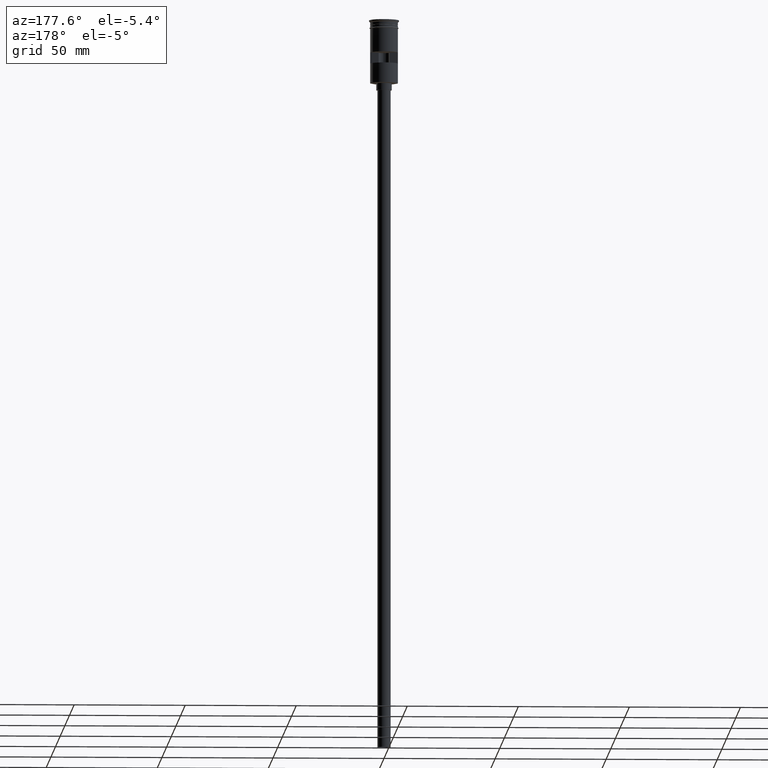
[diagram: clean part render]
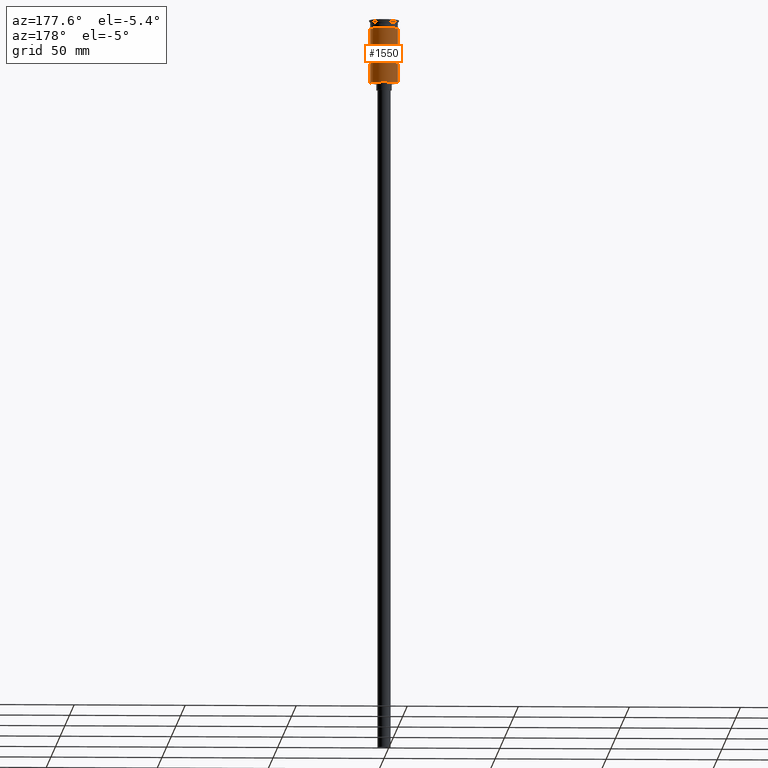
[diagram: same view with one face highlighted and labeled with its STEP entity id]
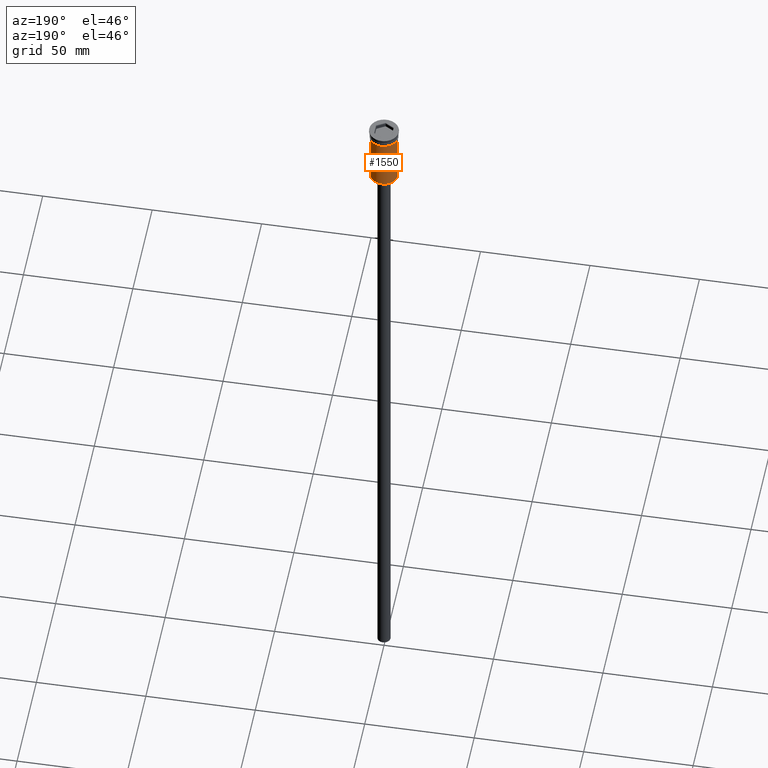
[diagram: same view with one face highlighted and labeled with its STEP entity id]
A machine part, auxiliary view. The second image highlights one B-rep face of the part: STEP entity #1550.
A second angle (auxiliary view) of the same face is appended — the face is thin or edge-on in the first view.
In plain terms, the highlighted cylindrical surface (edge-blend (fillet) strip) has radius 6.25 mm, axis along (-0, -0, 1).
Its self-contained STEP definition (entity closure, byte-faithful):
#15 = DIRECTION ( 'NONE',  ( 1.000000000000000000, 0.000000000000000000, 0.000000000000000000 ) ) ;
#32 = EDGE_CURVE ( 'NONE', #1033, #780, #544, .T. ) ;
#75 = EDGE_CURVE ( 'NONE', #780, #1279, #785, .T. ) ;
#107 = CARTESIAN_POINT ( 'NONE',  ( -6.221133337262590324, 0.5999999999999999778, -14.49999999999999822 ) ) ;
#154 = VECTOR ( 'NONE', #837, 1000.000000000000000 ) ;
#160 = CARTESIAN_POINT ( 'NONE',  ( 0.000000000000000000, 0.000000000000000000, -28.29999999999999716 ) ) ;
#171 = CARTESIAN_POINT ( 'NONE',  ( 6.221133337262590324, 0.5999999999999999778, -19.50000000000000355 ) ) ;
#175 = ORIENTED_EDGE ( 'NONE', *, *, #1211, .F. ) ;
#189 = CARTESIAN_POINT ( 'NONE',  ( -6.249999999999997335, 7.654042494670954648E-16, 0.000000000000000000 ) ) ;
#207 = VERTEX_POINT ( 'NONE', #993 ) ;
#211 = CARTESIAN_POINT ( 'NONE',  ( 6.249999999999997335, 0.000000000000000000, 0.000000000000000000 ) ) ;
#229 = DIRECTION ( 'NONE',  ( 0.000000000000000000, -1.000000000000000000, 2.775557561562892337E-16 ) ) ;
#238 = CARTESIAN_POINT ( 'NONE',  ( -6.250000000000000000, 7.654042494670958593E-16, -3.799999999999998490 ) ) ;
#257 = CIRCLE ( 'NONE', #862, 6.249999999999997335 ) ;
#262 = EDGE_LOOP ( 'NONE', ( #1479, #741, #643, #1321 ) ) ;
#297 = CARTESIAN_POINT ( 'NONE',  ( 6.221133337262590324, 0.5999999999999999778, 0.000000000000000000 ) ) ;
#305 = DIRECTION ( 'NONE',  ( 0.000000000000000000, 0.000000000000000000, -1.000000000000000000 ) ) ;
#310 = VERTEX_POINT ( 'NONE', #770 ) ;
#323 = LINE ( 'NONE', #496, #154 ) ;
#353 = EDGE_CURVE ( 'NONE', #207, #753, #1412, .T. ) ;
#362 = DIRECTION ( 'NONE',  ( -0.000000000000000000, -0.000000000000000000, 1.000000000000000000 ) ) ;
#382 = DIRECTION ( 'NONE',  ( -0.000000000000000000, -3.070307037127093647E-16, -1.000000000000000000 ) ) ;
#470 = CARTESIAN_POINT ( 'NONE',  ( 6.221133337262590324, 0.5999999999999999778, -14.49999999999999822 ) ) ;
#496 = CARTESIAN_POINT ( 'NONE',  ( 6.249999999999995559, 7.654042494670950704E-16, -28.50000000000000000 ) ) ;
#510 = VECTOR ( 'NONE', #305, 1000.000000000000000 ) ;
#513 = ORIENTED_EDGE ( 'NONE', *, *, #990, .F. ) ;
#522 = CARTESIAN_POINT ( 'NONE',  ( 0.000000000000000000, 0.000000000000000000, -3.799999999999998490 ) ) ;
#544 = LINE ( 'NONE', #666, #608 ) ;
#563 = AXIS2_PLACEMENT_3D ( 'NONE', #1454, #362, #1582 ) ;
#580 = VECTOR ( 'NONE', #798, 1000.000000000000000 ) ;
#608 = VECTOR ( 'NONE', #676, 1000.000000000000000 ) ;
#616 = DIRECTION ( 'NONE',  ( -0.000000000000000000, -0.000000000000000000, 1.000000000000000000 ) ) ;
#643 = ORIENTED_EDGE ( 'NONE', *, *, #32, .F. ) ;
#666 = CARTESIAN_POINT ( 'NONE',  ( -6.221133337262590324, 0.5999999999999999778, 0.000000000000000000 ) ) ;
#676 = DIRECTION ( 'NONE',  ( -0.000000000000000000, -0.000000000000000000, 1.000000000000000000 ) ) ;
#696 = LINE ( 'NONE', #1186, #836 ) ;
#741 = ORIENTED_EDGE ( 'NONE', *, *, #75, .F. ) ;
#747 = ORIENTED_EDGE ( 'NONE', *, *, #982, .T. ) ;
#753 = VERTEX_POINT ( 'NONE', #1098 ) ;
#768 = DIRECTION ( 'NONE',  ( 0.000000000000000000, 0.000000000000000000, 1.000000000000000000 ) ) ;
#770 = CARTESIAN_POINT ( 'NONE',  ( 6.249999999999995559, 7.654042494670950704E-16, -28.29999999999999716 ) ) ;
#780 = VERTEX_POINT ( 'NONE', #107 ) ;
#781 = EDGE_CURVE ( 'NONE', #1025, #807, #696, .T. ) ;
#785 = CIRCLE ( 'NONE', #1427, 6.249999999999997335 ) ;
#798 = DIRECTION ( 'NONE',  ( -0.000000000000000000, -0.000000000000000000, 1.000000000000000000 ) ) ;
#807 = VERTEX_POINT ( 'NONE', #1081 ) ;
#813 = DIRECTION ( 'NONE',  ( -0.000000000000000000, -0.000000000000000000, 1.000000000000000000 ) ) ;
#836 = VECTOR ( 'NONE', #1218, 1000.000000000000000 ) ;
#837 = DIRECTION ( 'NONE',  ( -0.000000000000000000, -0.000000000000000000, 1.000000000000000000 ) ) ;
#848 = EDGE_LOOP ( 'NONE', ( #1023, #1331, #513, #1443, #175, #747 ) ) ;
#862 = AXIS2_PLACEMENT_3D ( 'NONE', #160, #992, #1136 ) ;
#937 = EDGE_CURVE ( 'NONE', #1284, #1033, #945, .T. ) ;
#945 = CIRCLE ( 'NONE', #996, 6.249999999999997335 ) ;
#954 = CARTESIAN_POINT ( 'NONE',  ( 0.000000000000000000, 0.000000000000000000, -14.49999999999999822 ) ) ;
#973 = AXIS2_PLACEMENT_3D ( 'NONE', #522, #616, #15 ) ;
#982 = EDGE_CURVE ( 'NONE', #310, #1025, #257, .T. ) ;
#990 = EDGE_CURVE ( 'NONE', #753, #1253, #1261, .T. ) ;
#992 = DIRECTION ( 'NONE',  ( 0.000000000000000000, 0.000000000000000000, 1.000000000000000000 ) ) ;
#993 = CARTESIAN_POINT ( 'NONE',  ( 6.249999999999997335, 7.654042494670953662E-16, -23.80000000000003624 ) ) ;
#996 = AXIS2_PLACEMENT_3D ( 'NONE', #1004, #768, #1361 ) ;
#1004 = CARTESIAN_POINT ( 'NONE',  ( 0.000000000000000000, 0.000000000000000000, -19.50000000000000355 ) ) ;
#1023 = ORIENTED_EDGE ( 'NONE', *, *, #781, .T. ) ;
#1025 = VERTEX_POINT ( 'NONE', #1399 ) ;
#1033 = VERTEX_POINT ( 'NONE', #1034 ) ;
#1034 = CARTESIAN_POINT ( 'NONE',  ( -6.221133337262590324, 0.5999999999999999778, -19.50000000000000355 ) ) ;
#1081 = CARTESIAN_POINT ( 'NONE',  ( -6.249999999999995559, 0.000000000000000000, -23.80000000000003624 ) ) ;
#1098 = CARTESIAN_POINT ( 'NONE',  ( 6.250000000000000000, 0.000000000000000000, -3.799999999999998490 ) ) ;
#1136 = DIRECTION ( 'NONE',  ( -1.000000000000000000, 0.000000000000000000, 0.000000000000000000 ) ) ;
#1144 = EDGE_CURVE ( 'NONE', #807, #1253, #1319, .T. ) ;
#1186 = CARTESIAN_POINT ( 'NONE',  ( -6.249999999999995559, 0.000000000000000000, -28.50000000000000000 ) ) ;
#1190 = FACE_BOUND ( 'NONE', #262, .T. ) ;
#1210 = CYLINDRICAL_SURFACE ( 'NONE', #563, 6.249999999999997335 ) ;
#1211 = EDGE_CURVE ( 'NONE', #310, #207, #323, .T. ) ;
#1218 = DIRECTION ( 'NONE',  ( -0.000000000000000000, -0.000000000000000000, 1.000000000000000000 ) ) ;
#1253 = VERTEX_POINT ( 'NONE', #238 ) ;
#1261 = CIRCLE ( 'NONE', #973, 6.250000000000000000 ) ;
#1279 = VERTEX_POINT ( 'NONE', #470 ) ;
#1284 = VERTEX_POINT ( 'NONE', #171 ) ;
#1319 = LINE ( 'NONE', #189, #1389 ) ;
#1321 = ORIENTED_EDGE ( 'NONE', *, *, #937, .F. ) ;
#1331 = ORIENTED_EDGE ( 'NONE', *, *, #1144, .T. ) ;
#1361 = DIRECTION ( 'NONE',  ( -1.000000000000000000, 0.000000000000000000, 0.000000000000000000 ) ) ;
#1389 = VECTOR ( 'NONE', #813, 1000.000000000000000 ) ;
#1399 = CARTESIAN_POINT ( 'NONE',  ( -6.249999999999995559, 0.000000000000000000, -28.29999999999999716 ) ) ;
#1412 = LINE ( 'NONE', #211, #580 ) ;
#1421 = LINE ( 'NONE', #297, #510 ) ;
#1427 = AXIS2_PLACEMENT_3D ( 'NONE', #954, #382, #229 ) ;
#1443 = ORIENTED_EDGE ( 'NONE', *, *, #353, .F. ) ;
#1454 = CARTESIAN_POINT ( 'NONE',  ( 0.000000000000000000, 0.000000000000000000, 0.000000000000000000 ) ) ;
#1460 = EDGE_CURVE ( 'NONE', #1279, #1284, #1421, .T. ) ;
#1479 = ORIENTED_EDGE ( 'NONE', *, *, #1460, .F. ) ;
#1550 = ADVANCED_FACE ( 'NONE', ( #1190, #1569 ), #1210, .T. ) ;
#1569 = FACE_OUTER_BOUND ( 'NONE', #848, .T. ) ;
#1582 = DIRECTION ( 'NONE',  ( 1.000000000000000000, 0.000000000000000000, 0.000000000000000000 ) ) ;